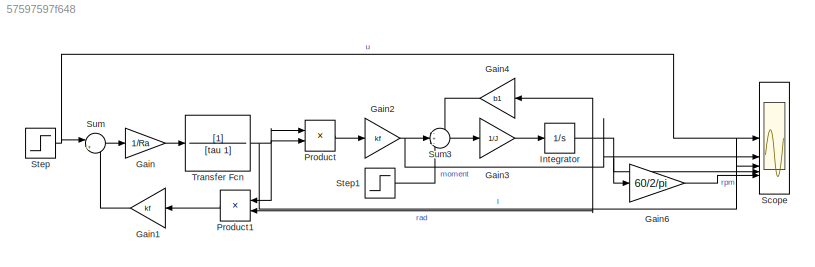
MODEL slx_57597597f648
KIND model
CONFIG AbsTol = auto
CONFIG EnableMultiTasking = off
CONFIG FixedStep = auto
CONFIG MaxStep = auto
CONFIG MinStep = auto
CONFIG RelTol = 1e-3
CONFIG SampleTimeConstraint = Unconstrained
CONFIG SolverName = VariableStepAuto
CONFIG StartTime = 0.0
CONFIG StopTime = 60
BLOCK [Gain] Gain
  Gain = 1/Ra
BLOCK [Gain] Gain1
  Gain = kf
  NameLocation = top
BLOCK [Gain] Gain2
  Gain = kf
BLOCK [Gain] Gain3
  Gain = 1/J
BLOCK [Gain] Gain4
  Gain = b1
  NameLocation = top
BLOCK [Gain] Gain6
  Gain = 60/2/pi
BLOCK [Integrator] Integrator
BLOCK [Product] Product
BLOCK [Product] Product1
  NameLocation = top
BLOCK [Scope] Scope
  ActiveDisplayYMaximum = 2571.1599966613385
  ActiveDisplayYMinimum = -327.644922224124
  ContainerLayout = {"WindowBounds":[953,0,974,1039]}
  Floating = off
  GraphicalSettings = {"Style":{"BackgroundColor":[0.12941176470588237,0.12941176470588237,0.12941176470588237],"AxesColor":[0.07058823529411765,0.07058823529411765,0.07058823529411765],"LabelsColor":[0.8509803921568627,0.8509803921568627,0.8509803921568627],"PreserveColors":false,"Visible":[true,true,true,true,true],"LineStyle":["-","-","-","-","-"],"LineWidth":[1.5,1.5,1.5,1.5,1.5],"BarWidth":[0.9,0.9,0.9,0.9,0.9],"L...<+2716ch>
  MultipleDisplayCache = [{"MaxYLimMag":2739.3706483467577,"MaxYLimReal":2571.1599966613385,"MinYLimMag":0,"MinYLimReal":-327.644922224124,"PlotAsMagnitudePhase":false,"ShowGrid":true,"ShowLegend":false,"Title":"%<SignalLabel>","YLabel":""}]
  NumInputPorts = 5
  ScopeFrameLocation = container
  Visible = on
  WasSavedAsWebScope = on
  WindowPosition = [962.000000,50.000000,958.000000,1000.000000,]
BLOCK [Step] Step
  After = Ua
  SampleTime = 0
BLOCK [Step] Step1
  After = Tl
  SampleTime = 0
BLOCK [Sum] Sum
  Inputs = |+-
BLOCK [Sum] Sum3
  Inputs = -+-
BLOCK [TransferFcn] Transfer Fcn
  Denominator = [tau 1]
LINE Gain1:1 -> Sum:2
NET Gain2:1 -> Scope:2, Sum3:2
LINE Gain3:1 -> Integrator:1
LINE Gain4:1 -> Sum3:1
LINE Gain6:1 -> Scope:5
LINE Gain:1 -> Transfer Fcn:1
NET Integrator:1 -> Gain4:1, Gain6:1, Product1:2, Scope:4
LINE Product1:1 -> Gain1:1
LINE Product:1 -> Gain2:1
LINE Step1:1 -> Sum3:3
NET Step:1 -> Scope:1, Sum:1
LINE Sum3:1 -> Gain3:1
LINE Sum:1 -> Gain:1
NET Transfer Fcn:1 -> Product1:1, Product:1, Product:2, Scope:3
note: NET lines group one-source signal fan-out (src -> all destinations, sorted); 1:1 wires keep LINE
